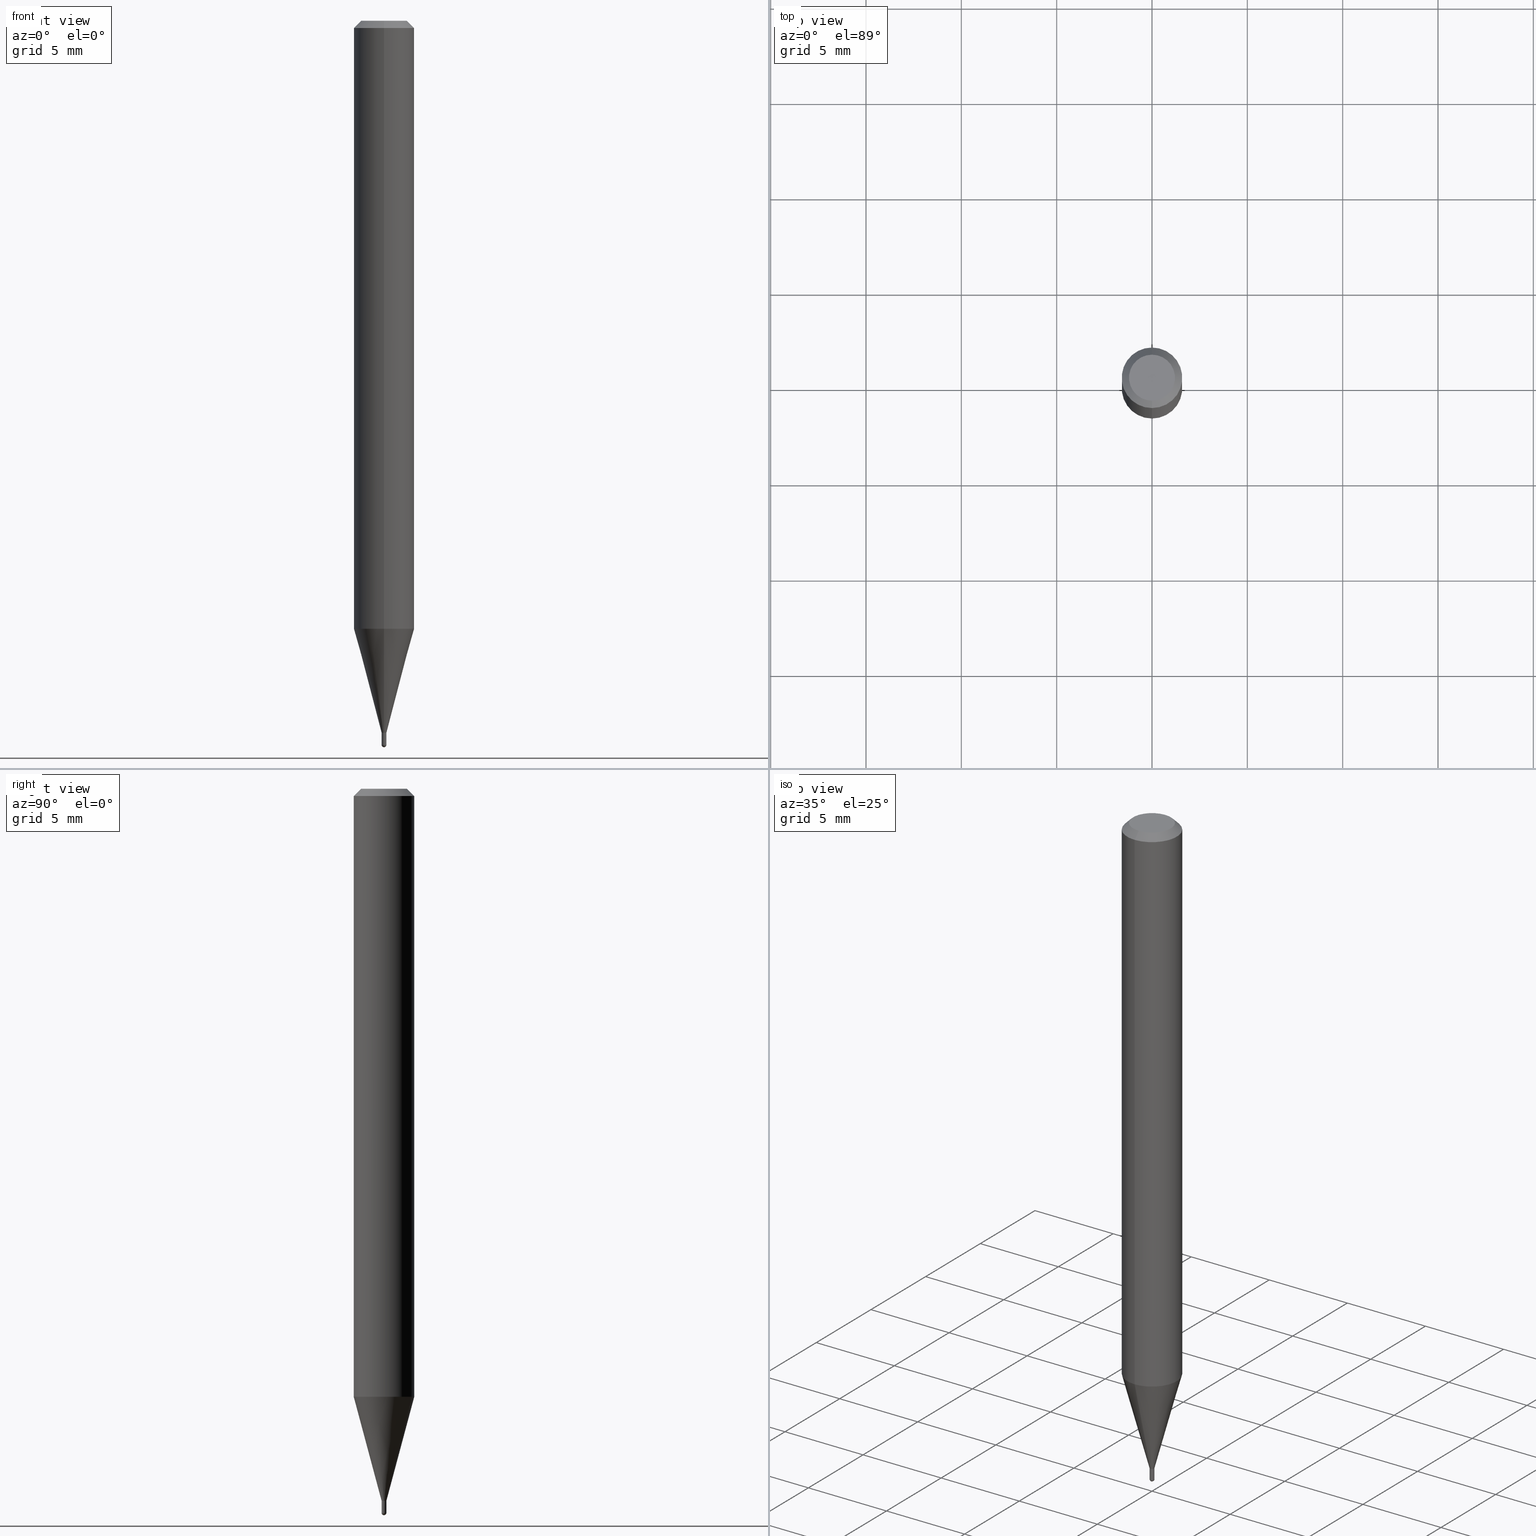
[diagram: canonical four-view strip — front | top / right | iso, engineering-drawing reading convention]
A machine part, canonical four-view strip (front | top / right | iso — engineering-drawing reading convention). The complete STEP part file that produces these views, byte-faithful:
ISO-10303-21;
HEADER;
FILE_DESCRIPTION (( 'STEP AP203' ),
    '1' );
FILE_NAME ('01433.STEP',
    '2024-03-07T20:48:47',
    ( '' ),
    ( '' ),
    'SwSTEP 2.0',
    'SolidWorks 2023',
    '' );
FILE_SCHEMA (( 'CONFIG_CONTROL_DESIGN' ));
ENDSEC;

DATA;
#1 = DATE_TIME_ROLE ( 'classification_date' ) ;
#2 = DIRECTION ( 'NONE',  ( -2.445144721628923764E-29, 3.491945446373389387E-15, 1.000000000000000000 ) ) ;
#3 = COORDINATED_UNIVERSAL_TIME_OFFSET ( 5, 0, .BEHIND. ) ;
#4 = LINE ( 'NONE', #47, #398 ) ;
#5 = PERSON_AND_ORGANIZATION ( #435, #146 ) ;
#6 = DIRECTION ( 'NONE',  ( -2.445468806185136877E-29, 3.491481338843145188E-15, 1.000000000000000000 ) ) ;
#7 = CONICAL_SURFACE ( 'NONE', #512, 0.06250000000000000000, 0.7853981633974483900 ) ;
#8 = ADVANCED_FACE ( 'NONE', ( #227 ), #428, .F. ) ;
#9 = DATE_TIME_ROLE ( 'creation_date' ) ;
#10 = DIRECTION ( 'NONE',  ( -6.982962677686266711E-15, -1.000000000000000000, 3.491945446373389782E-15 ) ) ;
#11 = PRODUCT_RELATED_PRODUCT_CATEGORY ( 'detail', '', ( #134 ) ) ;
#12 = CARTESIAN_POINT ( 'NONE',  ( 3.594362740794518312E-29, -5.133159806168883610E-15, -1.470000000000000195 ) ) ;
#13 = PLANE ( 'NONE',  #330 ) ;
#14 = ORIENTED_EDGE ( 'NONE', *, *, #216, .T. ) ;
#15 = ADVANCED_FACE ( 'NONE', ( #467 ), #278, .F. ) ;
#16 = AXIS2_PLACEMENT_3D ( 'NONE', #165, #288, #315 ) ;
#17 = FACE_OUTER_BOUND ( 'NONE', #96, .T. ) ;
#18 = UNCERTAINTY_MEASURE_WITH_UNIT (LENGTH_MEASURE( 1.000000000000000082E-05 ), #228, 'distance_accuracy_value', 'NONE');
#19 = ORIENTED_EDGE ( 'NONE', *, *, #279, .T. ) ;
#20 = CARTESIAN_POINT ( 'NONE',  ( 3.655548282102189148E-29, -5.220376924970077322E-15, -1.495000000000000107 ) ) ;
#21 = VERTEX_POINT ( 'NONE', #191 ) ;
#22 = DIRECTION ( 'NONE',  ( 1.000000000000000000, -6.982962677686336130E-15, 0.000000000000000000 ) ) ;
#23 = ORIENTED_EDGE ( 'NONE', *, *, #237, .F. ) ;
#24 = EDGE_CURVE ( 'NONE', #380, #374, #200, .T. ) ;
#25 = AXIS2_PLACEMENT_3D ( 'NONE', #508, #393, #77 ) ;
#26 = LINE ( 'NONE', #429, #147 ) ;
#27 = AXIS2_PLACEMENT_3D ( 'NONE', #246, #284, #160 ) ;
#28 = ORIENTED_EDGE ( 'NONE', *, *, #490, .T. ) ;
#29 = DIRECTION ( 'NONE',  ( -2.445144721628923764E-29, 3.491945446373389387E-15, 1.000000000000000000 ) ) ;
#30 = CC_DESIGN_DATE_AND_TIME_ASSIGNMENT ( #238, #1, ( #405 ) ) ;
#31 = ORIENTED_EDGE ( 'NONE', *, *, #511, .T. ) ;
#32 = CARTESIAN_POINT ( 'NONE',  ( 0.000000000000000000, 0.000000000000000000, 0.000000000000000000 ) ) ;
#33 = VERTEX_POINT ( 'NONE', #504 ) ;
#34 = DIRECTION ( 'NONE',  ( 1.000000000000000000, 0.000000000000000000, 0.000000000000000000 ) ) ;
#35 = AXIS2_PLACEMENT_3D ( 'NONE', #70, #302, #34 ) ;
#36 = AXIS2_PLACEMENT_3D ( 'NONE', #49, #125, #90 ) ;
#37 = ORIENTED_EDGE ( 'NONE', *, *, #185, .F. ) ;
#38 = AXIS2_PLACEMENT_3D ( 'NONE', #410, #53, #93 ) ;
#39 = DIMENSIONAL_EXPONENTS ( 1.000000000000000000, 0.000000000000000000, 0.000000000000000000, 0.000000000000000000, 0.000000000000000000, 0.000000000000000000, 0.000000000000000000 ) ;
#40 = EDGE_CURVE ( 'NONE', #374, #471, #82, .T. ) ;
#41 = VERTEX_POINT ( 'NONE', #231 ) ;
#42 = PERSON_AND_ORGANIZATION ( #435, #146 ) ;
#43 = CARTESIAN_POINT ( 'NONE',  ( 3.594839145092150820E-29, -5.132477568099424807E-15, -1.470000000000000195 ) ) ;
#44 = COORDINATED_UNIVERSAL_TIME_OFFSET ( 5, 0, .BEHIND. ) ;
#45 = DIRECTION ( 'NONE',  ( -2.445144721628923764E-29, 3.491945446373389387E-15, 1.000000000000000000 ) ) ;
#46 = APPROVAL_STATUS ( 'not_yet_approved' ) ;
#47 = CARTESIAN_POINT ( 'NONE',  ( -0.004999999999999997502, 3.552713678800499154E-17, -2.459467545127451822E-31 ) ) ;
#48 = FACE_OUTER_BOUND ( 'NONE', #92, .T. ) ;
#49 = CARTESIAN_POINT ( 'NONE',  ( 3.594362740794518312E-29, -5.133159806168883610E-15, -1.470000000000000195 ) ) ;
#50 = VECTOR ( 'NONE', #491, 39.37007874015748143 ) ;
#51 = CARTESIAN_POINT ( 'NONE',  ( 3.491481338846726493E-17, 0.004999999999994865323, -1.470000000000000195 ) ) ;
#52 = EDGE_CURVE ( 'NONE', #294, #69, #202, .T. ) ;
#53 = DIRECTION ( 'NONE',  ( 1.000000000000000000, -6.982962677686265922E-15, 4.883557194083113462E-29 ) ) ;
#54 = VERTEX_POINT ( 'NONE', #234 ) ;
#55 = FACE_OUTER_BOUND ( 'NONE', #296, .T. ) ;
#56 = ORIENTED_EDGE ( 'NONE', *, *, #447, .T. ) ;
#57 = CIRCLE ( 'NONE', #381, 0.06250000000000000000 ) ;
#58 = DIRECTION ( 'NONE',  ( -2.445468806185136597E-29, 3.491481338843145583E-15, 1.000000000000000000 ) ) ;
#59 = ORIENTED_EDGE ( 'NONE', *, *, #178, .T. ) ;
#60 = DIRECTION ( 'NONE',  ( -2.445144721628923764E-29, 3.491945446373389387E-15, 1.000000000000000000 ) ) ;
#61 = ORIENTED_EDGE ( 'NONE', *, *, #141, .F. ) ;
#62 = EDGE_CURVE ( 'NONE', #305, #470, #406, .T. ) ;
#63 = CARTESIAN_POINT ( 'NONE',  ( -4.364351673553912750E-16, -0.06250000000000005551, -0.01499999999999979128 ) ) ;
#64 = ORIENTED_EDGE ( 'NONE', *, *, #506, .T. ) ;
#65 = ADVANCED_FACE ( 'NONE', ( #195 ), #182, .T. ) ;
#66 = AXIS2_PLACEMENT_3D ( 'NONE', #264, #329, #452 ) ;
#67 = ORIENTED_EDGE ( 'NONE', *, *, #62, .T. ) ;
#68 = ADVANCED_FACE ( 'NONE', ( #353 ), #143, .F. ) ;
#69 = VERTEX_POINT ( 'NONE', #360 ) ;
#70 = CARTESIAN_POINT ( 'NONE',  ( 0.000000000000000000, 0.000000000000000000, 0.000000000000000000 ) ) ;
#71 = DIRECTION ( 'NONE',  ( -6.982962677686265922E-15, -1.000000000000000000, 3.483106191921935554E-15 ) ) ;
#72 = CARTESIAN_POINT ( 'NONE',  ( 3.594362740794518312E-29, -5.133159806168883610E-15, -1.470000000000000195 ) ) ;
#73 = PRODUCT_DEFINITION_FORMATION_WITH_SPECIFIED_SOURCE ( 'ANY', '', #134, .NOT_KNOWN. ) ;
#74 = DIRECTION ( 'NONE',  ( -6.982962677686265922E-15, -1.000000000000000000, 0.000000000000000000 ) ) ;
#75 = CIRCLE ( 'NONE', #217, 0.04749999999999999362 ) ;
#76 = DATE_AND_TIME ( #167, #389 ) ;
#77 = DIRECTION ( 'NONE',  ( -6.982962677686265922E-15, -1.000000000000000000, 0.000000000000000000 ) ) ;
#78 = ADVANCED_FACE ( 'NONE', ( #323 ), #404, .T. ) ;
#79 = CALENDAR_DATE ( 2024, 7, 3 ) ;
#80 = DIRECTION ( 'NONE',  ( -2.445144721628923764E-29, 3.491945446373389387E-15, 1.000000000000000000 ) ) ;
#81 = PERSON_AND_ORGANIZATION_ROLE ( 'classification_officer' ) ;
#82 = CIRCLE ( 'NONE', #224, 0.06250000000000000000 ) ;
#83 = VECTOR ( 'NONE', #209, 39.37007874015748143 ) ;
#84 = PERSON_AND_ORGANIZATION_ROLE ( 'creator' ) ;
#85 = DIRECTION ( 'NONE',  ( -6.982962677686265922E-15, -1.000000000000000000, 3.491945446373389387E-15 ) ) ;
#86 = EDGE_CURVE ( 'NONE', #215, #69, #239, .T. ) ;
#87 = DATE_AND_TIME ( #356, #290 ) ;
#88 = CARTESIAN_POINT ( 'NONE',  ( 2.161086020321355253E-46, -3.086277233870654267E-32, -8.838274484144511642E-18 ) ) ;
#89 = MANIFOLD_SOLID_BREP ( 'Body-Move/Copy2[1]', #192 ) ;
#90 = DIRECTION ( 'NONE',  ( -6.982962677686265133E-15, -1.000000000000000000, 0.000000000000000000 ) ) ;
#91 = CARTESIAN_POINT ( 'NONE',  ( 3.552713678804027458E-17, 0.004999999999994774250, -1.469500000000000250 ) ) ;
#92 = EDGE_LOOP ( 'NONE', ( #133, #19, #419, #498 ) ) ;
#93 = DIRECTION ( 'NONE',  ( -6.982962677686265922E-15, -1.000000000000000000, 0.000000000000000000 ) ) ;
#94 = ORIENTED_EDGE ( 'NONE', *, *, #158, .F. ) ;
#95 = DIRECTION ( 'NONE',  ( -2.445468806185136597E-29, 3.491481338843145583E-15, 1.000000000000000000 ) ) ;
#96 = EDGE_LOOP ( 'NONE', ( #161, #64, #102, #255 ) ) ;
#97 = AXIS2_PLACEMENT_3D ( 'NONE', #412, #372, #496 ) ;
#98 = DIRECTION ( 'NONE',  ( -2.445144721628923764E-29, 3.491945446373389387E-15, 1.000000000000000000 ) ) ;
#99 = EDGE_LOOP ( 'NONE', ( #59, #384, #309, #213, #268 ) ) ;
#100 = ADVANCED_FACE ( 'NONE', ( #445 ), #172, .T. ) ;
#101 = CARTESIAN_POINT ( 'NONE',  ( 0.004999999999999997502, -5.211035898223395623E-15, -1.495000000000000107 ) ) ;
#102 = ORIENTED_EDGE ( 'NONE', *, *, #198, .T. ) ;
#103 = CC_DESIGN_PERSON_AND_ORGANIZATION_ASSIGNMENT ( #444, #81, ( #405 ) ) ;
#104 = CARTESIAN_POINT ( 'NONE',  ( 0.000000000000000000, 0.000000000000000000, 0.000000000000000000 ) ) ;
#105 = ORIENTED_EDGE ( 'NONE', *, *, #62, .F. ) ;
#106 = CIRCLE ( 'NONE', #322, 0.004999999999999997502 ) ;
#107 = DIRECTION ( 'NONE',  ( 2.445144721628923764E-29, -3.491945446373389387E-15, -1.000000000000000000 ) ) ;
#108 = ORIENTED_EDGE ( 'NONE', *, *, #118, .F. ) ;
#109 = ORIENTED_EDGE ( 'NONE', *, *, #394, .T. ) ;
#110 = CARTESIAN_POINT ( 'NONE',  ( 3.594362740794518312E-29, -5.133159806168883610E-15, -1.470000000000000195 ) ) ;
#111 = EDGE_LOOP ( 'NONE', ( #439, #56, #223, #434 ) ) ;
#112 = VECTOR ( 'NONE', #311, 39.37007874015748143 ) ;
#113 = DIRECTION ( 'NONE',  ( 1.000000000000000000, -6.982962677686336130E-15, 0.000000000000000000 ) ) ;
#114 = AXIS2_PLACEMENT_3D ( 'NONE', #456, #60, #218 ) ;
#115 = LINE ( 'NONE', #436, #283 ) ;
#116 = APPROVAL ( #240, 'UNSPECIFIED' ) ;
#117 = DIRECTION ( 'NONE',  ( -6.982962677686265922E-15, -1.000000000000000000, 0.000000000000000000 ) ) ;
#118 = EDGE_CURVE ( 'NONE', #455, #305, #4, .T. ) ;
#119 = PERSON_AND_ORGANIZATION ( #435, #146 ) ;
#120 = LINE ( 'NONE', #245, #347 ) ;
#121 = AXIS2_PLACEMENT_3D ( 'NONE', #151, #313, #74 ) ;
#122 = AXIS2_PLACEMENT_3D ( 'NONE', #297, #170, #337 ) ;
#123 = COORDINATED_UNIVERSAL_TIME_OFFSET ( 5, 0, .BEHIND. ) ;
#124 = CC_DESIGN_PERSON_AND_ORGANIZATION_ASSIGNMENT ( #462, #482, ( #134 ) ) ;
#125 = DIRECTION ( 'NONE',  ( -2.445144721628923764E-29, 3.491945446373389387E-15, 1.000000000000000000 ) ) ;
#126 = COORDINATED_UNIVERSAL_TIME_OFFSET ( 5, 0, .BEHIND. ) ;
#127 = DIRECTION ( 'NONE',  ( -6.982962677686265133E-15, -1.000000000000000000, 0.000000000000000000 ) ) ;
#128 = CARTESIAN_POINT ( 'NONE',  ( 4.440892098500625669E-16, 0.06250000000000000000, -2.182465903983368367E-16 ) ) ;
#129 = CC_DESIGN_APPROVAL ( #257, ( #73 ) ) ;
#130 = CC_DESIGN_PERSON_AND_ORGANIZATION_ASSIGNMENT ( #285, #163, ( #73 ) ) ;
#131 = VECTOR ( 'NONE', #507, 39.37007874015748143 ) ;
#132 = LINE ( 'NONE', #128, #50 ) ;
#133 = ORIENTED_EDGE ( 'NONE', *, *, #237, .T. ) ;
#134 = PRODUCT ( '01433', '01433', '', ( #350 ) ) ;
#135 = CARTESIAN_POINT ( 'NONE',  ( -4.364351673553916201E-16, -0.06250000000000000000, 2.182465903983368367E-16 ) ) ;
#136 = EDGE_LOOP ( 'NONE', ( #108, #188, #219, #509, #105 ) ) ;
#137 = CARTESIAN_POINT ( 'NONE',  ( 3.840629472727447874E-16, 0.04749999999999999362, -1.747056831868805136E-16 ) ) ;
#138 = ORIENTED_EDGE ( 'NONE', *, *, #266, .F. ) ;
#139 = CIRCLE ( 'NONE', #306, 0.005000000000000177046 ) ;
#140 = DIRECTION ( 'NONE',  ( -1.000000000000000000, 6.982962677686265922E-15, -4.883557194083112340E-29 ) ) ;
#141 = EDGE_CURVE ( 'NONE', #455, #282, #241, .T. ) ;
#142 = ORIENTED_EDGE ( 'NONE', *, *, #198, .F. ) ;
#143 = PLANE ( 'NONE',  #424 ) ;
#144 = CARTESIAN_POINT ( 'NONE',  ( 3.667717082443388186E-31, -5.237918169560087014E-17, -0.01500000000000000812 ) ) ;
#145 = ORIENTED_EDGE ( 'NONE', *, *, #432, .T. ) ;
#146 = ORGANIZATION ( 'UNSPECIFIED', 'UNSPECIFIED', '' ) ;
#147 = VECTOR ( 'NONE', #226, 39.37007874015748143 ) ;
#148 = FACE_OUTER_BOUND ( 'NONE', #425, .T. ) ;
#149 = EDGE_LOOP ( 'NONE', ( #31, #67 ) ) ;
#150 =( LENGTH_UNIT ( ) NAMED_UNIT ( * ) SI_UNIT ( $, .METRE. ) );
#151 = CARTESIAN_POINT ( 'NONE',  ( 3.593140168433704494E-29, -5.131413833445697491E-15, -1.469500000000000250 ) ) ;
#152 = DIRECTION ( 'NONE',  ( -2.445144721628923764E-29, 3.491945446373389387E-15, 1.000000000000000000 ) ) ;
#153 = ADVANCED_FACE ( 'NONE', ( #48 ), #260, .T. ) ;
#154 = CARTESIAN_POINT ( 'NONE',  ( 0.000000000000000000, 0.000000000000000000, 0.000000000000000000 ) ) ;
#155 = CARTESIAN_POINT ( 'NONE',  ( 3.594362740794518312E-29, -5.133159806168883610E-15, -1.470000000000000195 ) ) ;
#156 = CIRCLE ( 'NONE', #373, 0.004999999999999997502 ) ;
#157 = LINE ( 'NONE', #474, #83 ) ;
#158 = EDGE_CURVE ( 'NONE', #339, #380, #371, .T. ) ;
#159 = PERSON_AND_ORGANIZATION ( #435, #146 ) ;
#160 = DIRECTION ( 'NONE',  ( 7.105427357601000281E-15, 1.000000000000000000, 0.000000000000000000 ) ) ;
#161 = ORIENTED_EDGE ( 'NONE', *, *, #437, .F. ) ;
#162 = CC_DESIGN_PERSON_AND_ORGANIZATION_ASSIGNMENT ( #159, #208, ( #73 ) ) ;
#163 = PERSON_AND_ORGANIZATION_ROLE ( 'creator' ) ;
#164 = CC_DESIGN_APPROVAL ( #358, ( #405 ) ) ;
#165 = CARTESIAN_POINT ( 'NONE',  ( 3.655975865246779122E-29, -5.219764601570503141E-15, -1.495000000000000107 ) ) ;
#166 = CIRCLE ( 'NONE', #458, 0.004999999999999997502 ) ;
#167 = CALENDAR_DATE ( 2024, 7, 3 ) ;
#168 = DIRECTION ( 'NONE',  ( -6.982962677686265133E-15, -1.000000000000000000, 0.000000000000000000 ) ) ;
#169 = CARTESIAN_POINT ( 'NONE',  ( 3.594362740794518312E-29, -5.133159806168883610E-15, -1.470000000000000195 ) ) ;
#170 = DIRECTION ( 'NONE',  ( -2.445468806185136597E-29, 3.491481338843145583E-15, 1.000000000000000000 ) ) ;
#171 = ORIENTED_EDGE ( 'NONE', *, *, #506, .F. ) ;
#172 = CONICAL_SURFACE ( 'NONE', #466, 0.004499999999999997058, 0.7853981633974744803 ) ;
#173 = FACE_OUTER_BOUND ( 'NONE', #136, .T. ) ;
#174 = EDGE_LOOP ( 'NONE', ( #186, #331, #453, #499 ) ) ;
#175 = ADVANCED_FACE ( 'NONE', ( #438 ), #204, .T. ) ;
#176 = CARTESIAN_POINT ( 'NONE',  ( 3.655975865246779122E-29, -5.219764601570503141E-15, -1.495000000000000107 ) ) ;
#177 = ORIENTED_EDGE ( 'NONE', *, *, #40, .F. ) ;
#178 = EDGE_CURVE ( 'NONE', #333, #455, #156, .T. ) ;
#179 = CARTESIAN_POINT ( 'NONE',  ( 3.552713678804217894E-17, 0.004999999999994867057, -1.495000000000000107 ) ) ;
#180 = ORIENTED_EDGE ( 'NONE', *, *, #247, .F. ) ;
#181 = ADVANCED_BREP_SHAPE_REPRESENTATION ( '01433', ( #89, #430, #35 ), #364 ) ;
#182 = CONICAL_SURFACE ( 'NONE', #25, 0.004999999999999922042, 0.2617993877991574014 ) ;
#183 = CONICAL_SURFACE ( 'NONE', #497, 0.004999999999999922042, 0.2617993877991574014 ) ;
#184 = DIRECTION ( 'NONE',  ( -2.445144721628923764E-29, 3.491945446373389387E-15, 1.000000000000000000 ) ) ;
#185 = EDGE_CURVE ( 'NONE', #380, #339, #75, .T. ) ;
#186 = ORIENTED_EDGE ( 'NONE', *, *, #394, .F. ) ;
#187 = CARTESIAN_POINT ( 'NONE',  ( 3.593140168433704494E-29, -5.131413833445697491E-15, -1.469500000000000250 ) ) ;
#188 = ORIENTED_EDGE ( 'NONE', *, *, #141, .T. ) ;
#189 = DIRECTION ( 'NONE',  ( -6.982962677686265922E-15, -1.000000000000000000, 0.000000000000000000 ) ) ;
#190 = DESIGN_CONTEXT ( 'detailed design', #259, 'design' ) ;
#191 = CARTESIAN_POINT ( 'NONE',  ( 3.667561834560820214E-29, -5.238140493364080236E-15, -1.500000000000000222 ) ) ;
#192 = CLOSED_SHELL ( 'NONE', ( #476, #402, #68, #78, #327 ) ) ;
#193 = AXIS2_PLACEMENT_3D ( 'NONE', #418, #368, #488 ) ;
#194 = DIRECTION ( 'NONE',  ( 6.982962677686265922E-15, 1.000000000000000000, -3.483106191921935554E-15 ) ) ;
#195 = FACE_OUTER_BOUND ( 'NONE', #459, .T. ) ;
#196 =( NAMED_UNIT ( * ) PLANE_ANGLE_UNIT ( ) SI_UNIT ( $, .RADIAN. ) );
#197 = EDGE_LOOP ( 'NONE', ( #180, #463, #396, #145 ) ) ;
#198 = EDGE_CURVE ( 'NONE', #215, #54, #357, .T. ) ;
#199 = SHAPE_DEFINITION_REPRESENTATION ( #486, #181 ) ;
#200 = LINE ( 'NONE', #276, #112 ) ;
#201 = APPROVAL_DATE_TIME ( #76, #257 ) ;
#202 = CIRCLE ( 'NONE', #121, 0.004999999999999922042 ) ;
#203 = CIRCLE ( 'NONE', #291, 0.004499999999999997058 ) ;
#204 = CYLINDRICAL_SURFACE ( 'NONE', #355, 0.06250000000000000000 ) ;
#205 = SECURITY_CLASSIFICATION_LEVEL ( 'unclassified' ) ;
#206 = DIRECTION ( 'NONE',  ( 2.438088387897960049E-29, -3.491481338843145188E-15, -1.000000000000000000 ) ) ;
#207 = CARTESIAN_POINT ( 'NONE',  ( 3.655975865246779122E-29, -5.219764601570503141E-15, -1.495000000000000107 ) ) ;
#208 = PERSON_AND_ORGANIZATION_ROLE ( 'design_supplier' ) ;
#209 = DIRECTION ( 'NONE',  ( -4.937700262164676627E-15, -0.7071067811865635599, 0.7071067811865314745 ) ) ;
#210 = VECTOR ( 'NONE', #280, 39.37007874015748854 ) ;
#211 = DIRECTION ( 'NONE',  ( 1.000000000000000000, -6.982962677686336130E-15, 0.000000000000000000 ) ) ;
#212 = LINE ( 'NONE', #135, #225 ) ;
#213 = ORIENTED_EDGE ( 'NONE', *, *, #336, .F. ) ;
#214 = LINE ( 'NONE', #375, #472 ) ;
#215 = VERTEX_POINT ( 'NONE', #286 ) ;
#216 = EDGE_CURVE ( 'NONE', #21, #333, #250, .T. ) ;
#217 = AXIS2_PLACEMENT_3D ( 'NONE', #88, #510, #10 ) ;
#218 = DIRECTION ( 'NONE',  ( -6.982962677686265922E-15, -1.000000000000000000, 3.491945446373389387E-15 ) ) ;
#219 = ORIENTED_EDGE ( 'NONE', *, *, #417, .T. ) ;
#220 = EDGE_CURVE ( 'NONE', #41, #69, #157, .T. ) ;
#221 = CYLINDRICAL_SURFACE ( 'NONE', #114, 0.06250000000000000000 ) ;
#222 = ORIENTED_EDGE ( 'NONE', *, *, #52, .T. ) ;
#223 = ORIENTED_EDGE ( 'NONE', *, *, #220, .T. ) ;
#224 = AXIS2_PLACEMENT_3D ( 'NONE', #468, #431, #71 ) ;
#225 = VECTOR ( 'NONE', #295, 39.37007874015748143 ) ;
#226 = DIRECTION ( 'NONE',  ( 1.839019923739649225E-15, 0.2588190451025318417, 0.9659258262890653146 ) ) ;
#227 = FACE_OUTER_BOUND ( 'NONE', #376, .T. ) ;
#228 =( CONVERSION_BASED_UNIT ( 'INCH', #308 ) LENGTH_UNIT ( ) NAMED_UNIT ( #39 ) );
#229 = DIRECTION ( 'NONE',  ( -2.445144721628923764E-29, 3.491945446373389387E-15, 1.000000000000000000 ) ) ;
#230 = DIRECTION ( 'NONE',  ( -6.982962677686265922E-15, -1.000000000000000000, 3.491945446373389387E-15 ) ) ;
#231 = CARTESIAN_POINT ( 'NONE',  ( -3.142333204955223110E-17, -0.004500000000005130105, -1.470000000000000195 ) ) ;
#232 = AXIS2_PLACEMENT_3D ( 'NONE', #493, #262, #194 ) ;
#233 = CARTESIAN_POINT ( 'NONE',  ( 4.440892098500934804E-16, 0.06249999999999995143, -0.01500000000000022669 ) ) ;
#234 = CARTESIAN_POINT ( 'NONE',  ( -4.364351673553610024E-16, -0.06250000000000439926, -1.255407078564795942 ) ) ;
#235 = CALENDAR_DATE ( 2024, 7, 3 ) ;
#236 = ORIENTED_EDGE ( 'NONE', *, *, #158, .T. ) ;
#237 = EDGE_CURVE ( 'NONE', #41, #421, #365, .T. ) ;
#238 = DATE_AND_TIME ( #79, #440 ) ;
#239 = LINE ( 'NONE', #443, #328 ) ;
#240 = APPROVAL_STATUS ( 'not_yet_approved' ) ;
#241 = CIRCLE ( 'NONE', #16, 0.004999999999999997502 ) ;
#242 = CIRCLE ( 'NONE', #442, 0.004999999999999922042 ) ;
#243 = DIRECTION ( 'NONE',  ( -6.982962677686265922E-15, -1.000000000000000000, 4.370956789862821150E-15 ) ) ;
#244 = APPLICATION_PROTOCOL_DEFINITION ( 'international standard', 'config_control_design', 1994, #259 ) ;
#245 = CARTESIAN_POINT ( 'NONE',  ( 3.197442310924042993E-17, 0.004499999999994863144, -1.470000000000000195 ) ) ;
#246 = CARTESIAN_POINT ( 'NONE',  ( 3.655548282102189148E-29, -5.220376924970077322E-15, -1.495000000000000107 ) ) ;
#247 = EDGE_CURVE ( 'NONE', #33, #294, #115, .T. ) ;
#248 = CARTESIAN_POINT ( 'NONE',  ( 2.161086020321355253E-46, -3.086277233870654267E-32, -8.838274484144511642E-18 ) ) ;
#249 = CLOSED_SHELL ( 'NONE', ( #8, #153, #422, #289, #65, #352, #175, #484, #15, #377, #100, #500 ) ) ;
#250 = CIRCLE ( 'NONE', #27, 0.005000000000000177046 ) ;
#251 = CC_DESIGN_PERSON_AND_ORGANIZATION_ASSIGNMENT ( #5, #84, ( #457 ) ) ;
#252 = DIRECTION ( 'NONE',  ( -2.445144721628923764E-29, 3.491945446373389387E-15, 1.000000000000000000 ) ) ;
#253 = ORIENTED_EDGE ( 'NONE', *, *, #345, .F. ) ;
#254 = CARTESIAN_POINT ( 'NONE',  ( -0.004999999999999997502, -5.140593948046958933E-15, -1.470000000000000195 ) ) ;
#255 = ORIENTED_EDGE ( 'NONE', *, *, #361, .F. ) ;
#256 = DIRECTION ( 'NONE',  ( 1.000000000000000000, -6.982962677686336130E-15, 0.000000000000000000 ) ) ;
#257 = APPROVAL ( #319, 'UNSPECIFIED' ) ;
#258 = ORIENTED_EDGE ( 'NONE', *, *, #383, .T. ) ;
#259 = APPLICATION_CONTEXT ( 'configuration controlled 3d designs of mechanical parts and assemblies' ) ;
#260 = CONICAL_SURFACE ( 'NONE', #36, 0.004499999999999997058, 0.7853981633974744803 ) ;
#261 = AXIS2_PLACEMENT_3D ( 'NONE', #460, #58, #22 ) ;
#262 = DIRECTION ( 'NONE',  ( 2.445144721628923764E-29, -3.491945446373389387E-15, -1.000000000000000000 ) ) ;
#263 = EDGE_LOOP ( 'NONE', ( #413, #351, #61, #451 ) ) ;
#264 = CARTESIAN_POINT ( 'NONE',  ( 3.069651991648299295E-29, -4.383813031339259395E-15, -1.255407078564796164 ) ) ;
#265 = ORIENTED_EDGE ( 'NONE', *, *, #417, .F. ) ;
#266 = EDGE_CURVE ( 'NONE', #54, #292, #57, .T. ) ;
#267 = CARTESIAN_POINT ( 'NONE',  ( 4.364351673553919652E-16, 0.06249999999999995143, -0.01500000000000022669 ) ) ;
#268 = ORIENTED_EDGE ( 'NONE', *, *, #307, .T. ) ;
#269 = CC_DESIGN_APPROVAL ( #116, ( #457 ) ) ;
#270 = CIRCLE ( 'NONE', #97, 0.004999999999999922042 ) ;
#271 = FACE_OUTER_BOUND ( 'NONE', #99, .T. ) ;
#272 = CARTESIAN_POINT ( 'NONE',  ( 3.316907271900976096E-16, 0.04749999999999999362, -1.702865459448082617E-16 ) ) ;
#273 =( NAMED_UNIT ( * ) SI_UNIT ( $, .STERADIAN. ) SOLID_ANGLE_UNIT ( ) );
#274 = EDGE_LOOP ( 'NONE', ( #37, #411, #379, #386 ) ) ;
#275 = CARTESIAN_POINT ( 'NONE',  ( 3.594839145092150820E-29, -5.132477568099424807E-15, -1.470000000000000195 ) ) ;
#276 = CARTESIAN_POINT ( 'NONE',  ( -4.287811248607203282E-16, -0.06250000000000005551, -0.01499999999999979128 ) ) ;
#277 = CIRCLE ( 'NONE', #193, 0.06250000000000000000 ) ;
#278 = PLANE ( 'NONE',  #441 ) ;
#279 = EDGE_CURVE ( 'NONE', #421, #294, #120, .T. ) ;
#280 = DIRECTION ( 'NONE',  ( -1.807323732225378260E-15, -0.2588190451025250693, 0.9659258262890670910 ) ) ;
#281 = DIRECTION ( 'NONE',  ( -2.445144721628923764E-29, 3.491945446373389387E-15, 1.000000000000000000 ) ) ;
#282 = VERTEX_POINT ( 'NONE', #363 ) ;
#283 = VECTOR ( 'NONE', #80, 39.37007874015748143 ) ;
#284 = DIRECTION ( 'NONE',  ( 1.000000000000000000, -7.105427357601001070E-15, 4.926315508542082329E-29 ) ) ;
#285 = PERSON_AND_ORGANIZATION ( #435, #146 ) ;
#286 = CARTESIAN_POINT ( 'NONE',  ( -3.491481338839484381E-17, -0.005000000000005055088, -1.470000000000000195 ) ) ;
#287 = COORDINATED_UNIVERSAL_TIME_OFFSET ( 5, 0, .BEHIND. ) ;
#288 = DIRECTION ( 'NONE',  ( -2.445468806185136597E-29, 3.491481338843145583E-15, 1.000000000000000000 ) ) ;
#289 = ADVANCED_FACE ( 'NONE', ( #55 ), #221, .T. ) ;
#290 = LOCAL_TIME ( 15, 48, 47.00000000000000000, #287 ) ;
#291 = AXIS2_PLACEMENT_3D ( 'NONE', #72, #184, #469 ) ;
#292 = VERTEX_POINT ( 'NONE', #378 ) ;
#293 = DIRECTION ( 'NONE',  ( -2.445468806185136877E-29, 3.491481338843145188E-15, 1.000000000000000000 ) ) ;
#294 = VERTEX_POINT ( 'NONE', #91 ) ;
#295 = DIRECTION ( 'NONE',  ( -2.445144721628923764E-29, 3.491945446373389387E-15, 1.000000000000000000 ) ) ;
#296 = EDGE_LOOP ( 'NONE', ( #494, #109, #177, #344 ) ) ;
#297 = CARTESIAN_POINT ( 'NONE',  ( 0.000000000000000000, 0.000000000000000000, 0.000000000000000000 ) ) ;
#298 = AXIS2_PLACEMENT_3D ( 'NONE', #104, #348, #503 ) ;
#299 = ORIENTED_EDGE ( 'NONE', *, *, #185, .T. ) ;
#300 = CYLINDRICAL_SURFACE ( 'NONE', #122, 0.004999999999999997502 ) ;
#301 = EDGE_LOOP ( 'NONE', ( #253, #14, #461, #265 ) ) ;
#302 = DIRECTION ( 'NONE',  ( 0.000000000000000000, 0.000000000000000000, 1.000000000000000000 ) ) ;
#303 = ORIENTED_EDGE ( 'NONE', *, *, #24, .F. ) ;
#304 = CYLINDRICAL_SURFACE ( 'NONE', #298, 0.004999999999999997502 ) ;
#305 = VERTEX_POINT ( 'NONE', #254 ) ;
#306 = AXIS2_PLACEMENT_3D ( 'NONE', #20, #140, #420 ) ;
#307 = EDGE_CURVE ( 'NONE', #342, #333, #487, .T. ) ;
#308 = LENGTH_MEASURE_WITH_UNIT ( LENGTH_MEASURE( 0.02539999999999999897 ), #150 );
#309 = ORIENTED_EDGE ( 'NONE', *, *, #511, .F. ) ;
#310 = APPLICATION_PROTOCOL_DEFINITION ( 'international standard', 'config_control_design', 1994, #390 ) ;
#311 = DIRECTION ( 'NONE',  ( -4.851104656540964275E-15, -0.7071067811865500152, -0.7071067811865450192 ) ) ;
#312 = DIRECTION ( 'NONE',  ( 1.000000000000000000, -6.982962677686336130E-15, 0.000000000000000000 ) ) ;
#313 = DIRECTION ( 'NONE',  ( -2.445144721628923764E-29, 3.491945446373389387E-15, 1.000000000000000000 ) ) ;
#314 = PERSON_AND_ORGANIZATION ( #435, #146 ) ;
#315 = DIRECTION ( 'NONE',  ( 1.000000000000000000, -6.982962677686336130E-15, 0.000000000000000000 ) ) ;
#316 = EDGE_CURVE ( 'NONE', #215, #33, #270, .T. ) ;
#317 = CARTESIAN_POINT ( 'NONE',  ( 3.069651991648299295E-29, -4.383813031339259395E-15, -1.255407078564796164 ) ) ;
#318 = ORIENTED_EDGE ( 'NONE', *, *, #316, .T. ) ;
#319 = APPROVAL_STATUS ( 'not_yet_approved' ) ;
#320 = DIRECTION ( 'NONE',  ( -2.445144721628923764E-29, 3.491945446373389387E-15, 1.000000000000000000 ) ) ;
#321 = APPROVAL_DATE_TIME ( #400, #116 ) ;
#322 = AXIS2_PLACEMENT_3D ( 'NONE', #176, #95, #256 ) ;
#323 = FACE_OUTER_BOUND ( 'NONE', #263, .T. ) ;
#324 = APPROVAL_ROLE ( '' ) ;
#325 = CARTESIAN_POINT ( 'NONE',  ( -3.491481338839484381E-17, -0.005000000000005055088, -1.470000000000000195 ) ) ;
#326 = DIRECTION ( 'NONE',  ( -6.982962677686265922E-15, -1.000000000000000000, 3.491945446373389387E-15 ) ) ;
#327 = ADVANCED_FACE ( 'NONE', ( #173 ), #300, .T. ) ;
#328 = VECTOR ( 'NONE', #320, 39.37007874015748143 ) ;
#329 = DIRECTION ( 'NONE',  ( -2.445144721628923764E-29, 3.491945446373389387E-15, 1.000000000000000000 ) ) ;
#330 = AXIS2_PLACEMENT_3D ( 'NONE', #169, #98, #326 ) ;
#331 = ORIENTED_EDGE ( 'NONE', *, *, #361, .T. ) ;
#332 = FACE_OUTER_BOUND ( 'NONE', #301, .T. ) ;
#333 = VERTEX_POINT ( 'NONE', #179 ) ;
#334 = FACE_OUTER_BOUND ( 'NONE', #274, .T. ) ;
#335 = ORIENTED_EDGE ( 'NONE', *, *, #447, .F. ) ;
#336 = EDGE_CURVE ( 'NONE', #342, #470, #214, .T. ) ;
#337 = DIRECTION ( 'NONE',  ( 1.000000000000000000, -6.982962677686266711E-15, 4.876176775795936914E-29 ) ) ;
#338 = APPROVAL_PERSON_ORGANIZATION ( #42, #358, #324 ) ;
#339 = VERTEX_POINT ( 'NONE', #137 ) ;
#340 = AXIS2_PLACEMENT_3D ( 'NONE', #154, #229, #502 ) ;
#341 = CC_DESIGN_DATE_AND_TIME_ASSIGNMENT ( #87, #9, ( #457 ) ) ;
#342 = VERTEX_POINT ( 'NONE', #101 ) ;
#343 = DIRECTION ( 'NONE',  ( -6.982962677686265922E-15, -1.000000000000000000, 0.000000000000000000 ) ) ;
#344 = ORIENTED_EDGE ( 'NONE', *, *, #409, .F. ) ;
#345 = EDGE_CURVE ( 'NONE', #21, #282, #139, .T. ) ;
#346 = ORIENTED_EDGE ( 'NONE', *, *, #247, .T. ) ;
#347 = VECTOR ( 'NONE', #403, 39.37007874015748143 ) ;
#348 = DIRECTION ( 'NONE',  ( -2.445468806185136597E-29, 3.491481338843145583E-15, 1.000000000000000000 ) ) ;
#349 = DIRECTION ( 'NONE',  ( 2.445144721628923764E-29, -3.491945446373389387E-15, -1.000000000000000000 ) ) ;
#350 = MECHANICAL_CONTEXT ( 'NONE', #390, 'mechanical' ) ;
#351 = ORIENTED_EDGE ( 'NONE', *, *, #345, .T. ) ;
#352 = ADVANCED_FACE ( 'NONE', ( #17 ), #183, .T. ) ;
#353 = FACE_OUTER_BOUND ( 'NONE', #149, .T. ) ;
#354 = APPROVAL_PERSON_ORGANIZATION ( #119, #116, #362 ) ;
#355 = AXIS2_PLACEMENT_3D ( 'NONE', #477, #408, #85 ) ;
#356 = CALENDAR_DATE ( 2024, 7, 3 ) ;
#357 = LINE ( 'NONE', #325, #210 ) ;
#358 = APPROVAL ( #46, 'UNSPECIFIED' ) ;
#359 = DATE_AND_TIME ( #235, #370 ) ;
#360 = CARTESIAN_POINT ( 'NONE',  ( -3.491481338839496707E-17, -0.005000000000005069833, -1.469500000000000250 ) ) ;
#361 = EDGE_CURVE ( 'NONE', #292, #54, #449, .T. ) ;
#362 = APPROVAL_ROLE ( '' ) ;
#363 = CARTESIAN_POINT ( 'NONE',  ( -3.491481338839537998E-17, -0.005000000000005307491, -1.495000000000000107 ) ) ;
#364 =( GEOMETRIC_REPRESENTATION_CONTEXT ( 3 ) GLOBAL_UNCERTAINTY_ASSIGNED_CONTEXT ( ( #18 ) ) GLOBAL_UNIT_ASSIGNED_CONTEXT ( ( #228, #196, #273 ) ) REPRESENTATION_CONTEXT ( 'NONE', 'WORKASPACE' ) );
#365 = CIRCLE ( 'NONE', #505, 0.004499999999999997058 ) ;
#366 = DIRECTION ( 'NONE',  ( -2.445468806185136597E-29, 3.491481338843145583E-15, 1.000000000000000000 ) ) ;
#367 = FACE_OUTER_BOUND ( 'NONE', #369, .T. ) ;
#368 = DIRECTION ( 'NONE',  ( -2.445144721628923764E-29, 3.491945446373389387E-15, 1.000000000000000000 ) ) ;
#369 = EDGE_LOOP ( 'NONE', ( #23, #335 ) ) ;
#370 = LOCAL_TIME ( 15, 48, 47.00000000000000000, #3 ) ;
#371 = CIRCLE ( 'NONE', #415, 0.04749999999999999362 ) ;
#372 = DIRECTION ( 'NONE',  ( -2.445144721628923764E-29, 3.491945446373389387E-15, 1.000000000000000000 ) ) ;
#373 = AXIS2_PLACEMENT_3D ( 'NONE', #207, #366, #211 ) ;
#374 = VERTEX_POINT ( 'NONE', #63 ) ;
#375 = CARTESIAN_POINT ( 'NONE',  ( 0.004999999999999997502, -3.491481338843131630E-17, 2.438088387897967108E-31 ) ) ;
#376 = EDGE_LOOP ( 'NONE', ( #171, #346, #222, #416 ) ) ;
#377 = ADVANCED_FACE ( 'NONE', ( #367 ), #13, .F. ) ;
#378 = CARTESIAN_POINT ( 'NONE',  ( 4.440892098500931845E-16, 0.06249999999999560074, -1.255407078564796608 ) ) ;
#379 = ORIENTED_EDGE ( 'NONE', *, *, #40, .T. ) ;
#380 = VERTEX_POINT ( 'NONE', #485 ) ;
#381 = AXIS2_PLACEMENT_3D ( 'NONE', #317, #281, #243 ) ;
#382 = LINE ( 'NONE', #267, #131 ) ;
#383 = EDGE_CURVE ( 'NONE', #471, #374, #277, .T. ) ;
#384 = ORIENTED_EDGE ( 'NONE', *, *, #118, .T. ) ;
#385 = DIRECTION ( 'NONE',  ( 6.982962677686265922E-15, 1.000000000000000000, -3.483106191921935554E-15 ) ) ;
#386 = ORIENTED_EDGE ( 'NONE', *, *, #490, .F. ) ;
#387 = DIRECTION ( 'NONE',  ( -2.445144721628923764E-29, 3.491945446373389387E-15, 1.000000000000000000 ) ) ;
#388 = DIRECTION ( 'NONE',  ( -2.445468806185136597E-29, 3.491481338843145583E-15, 1.000000000000000000 ) ) ;
#389 = LOCAL_TIME ( 15, 48, 47.00000000000000000, #44 ) ;
#390 = APPLICATION_CONTEXT ( 'configuration controlled 3d designs of mechanical parts and assemblies' ) ;
#391 = CONICAL_SURFACE ( 'NONE', #232, 0.06250000000000000000, 0.7853981633974483900 ) ;
#392 = FACE_OUTER_BOUND ( 'NONE', #197, .T. ) ;
#393 = DIRECTION ( 'NONE',  ( -2.445144721628923764E-29, 3.491945446373389387E-15, 1.000000000000000000 ) ) ;
#394 = EDGE_CURVE ( 'NONE', #292, #471, #132, .T. ) ;
#395 = APPROVAL_DATE_TIME ( #359, #358 ) ;
#396 = ORIENTED_EDGE ( 'NONE', *, *, #86, .T. ) ;
#397 = DIRECTION ( 'NONE',  ( -1.000000000000000000, 6.982962677686265922E-15, -4.876176775795935793E-29 ) ) ;
#398 = VECTOR ( 'NONE', #6, 39.37007874015748143 ) ;
#399 = AXIS2_PLACEMENT_3D ( 'NONE', #32, #29, #230 ) ;
#400 = DATE_AND_TIME ( #473, #495 ) ;
#401 = DIRECTION ( 'NONE',  ( -2.445144721628923764E-29, 3.491945446373389387E-15, 1.000000000000000000 ) ) ;
#402 = ADVANCED_FACE ( 'NONE', ( #332 ), #450, .T. ) ;
#403 = DIRECTION ( 'NONE',  ( 5.024295867788193341E-15, 0.7071067811865684449, 0.7071067811865265895 ) ) ;
#404 = SPHERICAL_SURFACE ( 'NONE', #478, 0.005000000000000177046 ) ;
#405 = SECURITY_CLASSIFICATION ( '', '', #205 ) ;
#406 = CIRCLE ( 'NONE', #448, 0.004999999999999997502 ) ;
#407 = CIRCLE ( 'NONE', #479, 0.004999999999999922042 ) ;
#408 = DIRECTION ( 'NONE',  ( -2.445144721628923764E-29, 3.491945446373389387E-15, 1.000000000000000000 ) ) ;
#409 = EDGE_CURVE ( 'NONE', #54, #374, #212, .T. ) ;
#410 = CARTESIAN_POINT ( 'NONE',  ( 3.655548282102189148E-29, -5.220376924970077322E-15, -1.495000000000000107 ) ) ;
#411 = ORIENTED_EDGE ( 'NONE', *, *, #24, .T. ) ;
#412 = CARTESIAN_POINT ( 'NONE',  ( 3.594362740794518312E-29, -5.133159806168883610E-15, -1.470000000000000195 ) ) ;
#413 = ORIENTED_EDGE ( 'NONE', *, *, #216, .F. ) ;
#414 = CARTESIAN_POINT ( 'NONE',  ( 3.375077994864040464E-17, 0.004499999999994863144, -1.470000000000000195 ) ) ;
#415 = AXIS2_PLACEMENT_3D ( 'NONE', #248, #45, #481 ) ;
#416 = ORIENTED_EDGE ( 'NONE', *, *, #86, .F. ) ;
#417 = EDGE_CURVE ( 'NONE', #282, #342, #106, .T. ) ;
#418 = CARTESIAN_POINT ( 'NONE',  ( 3.667717082443388186E-31, -5.237918169560087014E-17, -0.01500000000000000812 ) ) ;
#419 = ORIENTED_EDGE ( 'NONE', *, *, #432, .F. ) ;
#420 = DIRECTION ( 'NONE',  ( -6.982962677686265922E-15, -1.000000000000000000, 0.000000000000000000 ) ) ;
#421 = VERTEX_POINT ( 'NONE', #414 ) ;
#422 = ADVANCED_FACE ( 'NONE', ( #334 ), #391, .T. ) ;
#423 = APPROVAL_PERSON_ORGANIZATION ( #314, #257, #480 ) ;
#424 = AXIS2_PLACEMENT_3D ( 'NONE', #51, #206, #397 ) ;
#425 = EDGE_LOOP ( 'NONE', ( #303, #94, #28, #258 ) ) ;
#426 = CYLINDRICAL_SURFACE ( 'NONE', #399, 0.004999999999999922042 ) ;
#427 = DIRECTION ( 'NONE',  ( 6.982962677686265922E-15, 1.000000000000000000, -3.491945446373389387E-15 ) ) ;
#428 = CYLINDRICAL_SURFACE ( 'NONE', #340, 0.004999999999999922042 ) ;
#429 = CARTESIAN_POINT ( 'NONE',  ( 3.552713678804039168E-17, 0.004999999999994788995, -1.470000000000000195 ) ) ;
#430 = MANIFOLD_SOLID_BREP ( 'Body-Move/Copy2[2]', #249 ) ;
#431 = DIRECTION ( 'NONE',  ( -2.445144721628923764E-29, 3.491945446373389387E-15, 1.000000000000000000 ) ) ;
#432 = EDGE_CURVE ( 'NONE', #69, #294, #407, .T. ) ;
#433 = CARTESIAN_POINT ( 'NONE',  ( -0.004999999999999997502, -5.140593948046958933E-15, -1.495000000000000107 ) ) ;
#434 = ORIENTED_EDGE ( 'NONE', *, *, #52, .F. ) ;
#435 = PERSON ( 'UNSPECIFIED', 'UNSPECIFIED', 'UNSPECIFIED', ('UNSPECIFIED'), ('UNSPECIFIED'), ('UNSPECIFIED') ) ;
#436 = CARTESIAN_POINT ( 'NONE',  ( 3.552713678800444920E-17, 0.004999999999999922042, -1.745972723186667527E-17 ) ) ;
#437 = EDGE_CURVE ( 'NONE', #33, #292, #26, .T. ) ;
#438 = FACE_OUTER_BOUND ( 'NONE', #174, .T. ) ;
#439 = ORIENTED_EDGE ( 'NONE', *, *, #279, .F. ) ;
#440 = LOCAL_TIME ( 15, 48, 47.00000000000000000, #123 ) ;
#441 = AXIS2_PLACEMENT_3D ( 'NONE', #272, #349, #427 ) ;
#442 = AXIS2_PLACEMENT_3D ( 'NONE', #110, #387, #189 ) ;
#443 = CARTESIAN_POINT ( 'NONE',  ( -3.491481338843078628E-17, -0.004999999999999922042, 1.745972723186667527E-17 ) ) ;
#444 = PERSON_AND_ORGANIZATION ( #435, #146 ) ;
#445 = FACE_OUTER_BOUND ( 'NONE', #111, .T. ) ;
#446 = DIRECTION ( 'NONE',  ( 1.000000000000000000, -6.982962677686265922E-15, 4.883557194083113462E-29 ) ) ;
#447 = EDGE_CURVE ( 'NONE', #421, #41, #203, .T. ) ;
#448 = AXIS2_PLACEMENT_3D ( 'NONE', #43, #388, #113 ) ;
#449 = CIRCLE ( 'NONE', #66, 0.06250000000000000000 ) ;
#450 = SPHERICAL_SURFACE ( 'NONE', #38, 0.005000000000000177046 ) ;
#451 = ORIENTED_EDGE ( 'NONE', *, *, #178, .F. ) ;
#452 = DIRECTION ( 'NONE',  ( -6.982962677686265922E-15, -1.000000000000000000, 4.370956789862821150E-15 ) ) ;
#453 = ORIENTED_EDGE ( 'NONE', *, *, #409, .T. ) ;
#454 = DIRECTION ( 'NONE',  ( -6.982962677686265922E-15, -1.000000000000000000, 0.000000000000000000 ) ) ;
#455 = VERTEX_POINT ( 'NONE', #433 ) ;
#456 = CARTESIAN_POINT ( 'NONE',  ( 0.000000000000000000, 0.000000000000000000, 0.000000000000000000 ) ) ;
#457 = PRODUCT_DEFINITION ( 'UNKNOWN', '', #73, #190 ) ;
#458 = AXIS2_PLACEMENT_3D ( 'NONE', #275, #464, #312 ) ;
#459 = EDGE_LOOP ( 'NONE', ( #318, #489, #138, #142 ) ) ;
#460 = CARTESIAN_POINT ( 'NONE',  ( 3.655975865246779122E-29, -5.219764601570503141E-15, -1.495000000000000107 ) ) ;
#461 = ORIENTED_EDGE ( 'NONE', *, *, #307, .F. ) ;
#462 = PERSON_AND_ORGANIZATION ( #435, #146 ) ;
#463 = ORIENTED_EDGE ( 'NONE', *, *, #316, .F. ) ;
#464 = DIRECTION ( 'NONE',  ( -2.445468806185136597E-29, 3.491481338843145583E-15, 1.000000000000000000 ) ) ;
#465 = CC_DESIGN_SECURITY_CLASSIFICATION ( #405, ( #73 ) ) ;
#466 = AXIS2_PLACEMENT_3D ( 'NONE', #155, #401, #168 ) ;
#467 = FACE_OUTER_BOUND ( 'NONE', #492, .T. ) ;
#468 = CARTESIAN_POINT ( 'NONE',  ( 3.667717082443388186E-31, -5.237918169560087014E-17, -0.01500000000000000812 ) ) ;
#469 = DIRECTION ( 'NONE',  ( -6.982962677686265133E-15, -1.000000000000000000, 0.000000000000000000 ) ) ;
#470 = VERTEX_POINT ( 'NONE', #501 ) ;
#471 = VERTEX_POINT ( 'NONE', #233 ) ;
#472 = VECTOR ( 'NONE', #293, 39.37007874015748143 ) ;
#473 = CALENDAR_DATE ( 2024, 7, 3 ) ;
#474 = CARTESIAN_POINT ( 'NONE',  ( -3.142333204955223110E-17, -0.004500000000005130105, -1.470000000000000195 ) ) ;
#475 = CARTESIAN_POINT ( 'NONE',  ( 3.655548282102189148E-29, -5.220376924970077322E-15, -1.495000000000000107 ) ) ;
#476 = ADVANCED_FACE ( 'NONE', ( #271 ), #304, .T. ) ;
#477 = CARTESIAN_POINT ( 'NONE',  ( 0.000000000000000000, 0.000000000000000000, 0.000000000000000000 ) ) ;
#478 = AXIS2_PLACEMENT_3D ( 'NONE', #475, #446, #117 ) ;
#479 = AXIS2_PLACEMENT_3D ( 'NONE', #187, #152, #343 ) ;
#480 = APPROVAL_ROLE ( '' ) ;
#481 = DIRECTION ( 'NONE',  ( -6.982962677686266711E-15, -1.000000000000000000, 3.491945446373389782E-15 ) ) ;
#482 = PERSON_AND_ORGANIZATION_ROLE ( 'design_owner' ) ;
#483 = CARTESIAN_POINT ( 'NONE',  ( 3.594362740794518312E-29, -5.133159806168883610E-15, -1.470000000000000195 ) ) ;
#484 = ADVANCED_FACE ( 'NONE', ( #148 ), #7, .T. ) ;
#485 = CARTESIAN_POINT ( 'NONE',  ( -3.773273898774340269E-16, -0.04749999999999999362, 1.570291342185914565E-16 ) ) ;
#486 = PRODUCT_DEFINITION_SHAPE ( 'NONE', 'NONE',  #457 ) ;
#487 = CIRCLE ( 'NONE', #261, 0.004999999999999997502 ) ;
#488 = DIRECTION ( 'NONE',  ( -6.982962677686265922E-15, -1.000000000000000000, 3.483106191921935554E-15 ) ) ;
#489 = ORIENTED_EDGE ( 'NONE', *, *, #437, .T. ) ;
#490 = EDGE_CURVE ( 'NONE', #339, #471, #382, .T. ) ;
#491 = DIRECTION ( 'NONE',  ( -2.445144721628923764E-29, 3.491945446373389387E-15, 1.000000000000000000 ) ) ;
#492 = EDGE_LOOP ( 'NONE', ( #236, #299 ) ) ;
#493 = CARTESIAN_POINT ( 'NONE',  ( 3.667717082443388186E-31, -5.237918169560087014E-17, -0.01500000000000000812 ) ) ;
#494 = ORIENTED_EDGE ( 'NONE', *, *, #266, .T. ) ;
#495 = LOCAL_TIME ( 15, 48, 47.00000000000000000, #126 ) ;
#496 = DIRECTION ( 'NONE',  ( -6.982962677686265922E-15, -1.000000000000000000, 0.000000000000000000 ) ) ;
#497 = AXIS2_PLACEMENT_3D ( 'NONE', #12, #252, #454 ) ;
#498 = ORIENTED_EDGE ( 'NONE', *, *, #220, .F. ) ;
#499 = ORIENTED_EDGE ( 'NONE', *, *, #383, .F. ) ;
#500 = ADVANCED_FACE ( 'NONE', ( #392 ), #426, .F. ) ;
#501 = CARTESIAN_POINT ( 'NONE',  ( 0.004999999999999997502, -5.167392381487856456E-15, -1.470000000000000195 ) ) ;
#502 = DIRECTION ( 'NONE',  ( -6.982962677686265922E-15, -1.000000000000000000, 3.491945446373389387E-15 ) ) ;
#503 = DIRECTION ( 'NONE',  ( 1.000000000000000000, -6.982962677686266711E-15, 4.876176775795936914E-29 ) ) ;
#504 = CARTESIAN_POINT ( 'NONE',  ( 2.398081733190669607E-16, 0.004999999999994788995, -1.470000000000000195 ) ) ;
#505 = AXIS2_PLACEMENT_3D ( 'NONE', #483, #2, #127 ) ;
#506 = EDGE_CURVE ( 'NONE', #33, #215, #242, .T. ) ;
#507 = DIRECTION ( 'NONE',  ( 4.937700262164548042E-15, 0.7071067811865451302, -0.7071067811865499042 ) ) ;
#508 = CARTESIAN_POINT ( 'NONE',  ( 3.594362740794518312E-29, -5.133159806168883610E-15, -1.470000000000000195 ) ) ;
#509 = ORIENTED_EDGE ( 'NONE', *, *, #336, .T. ) ;
#510 = DIRECTION ( 'NONE',  ( -2.445144721628923764E-29, 3.491945446373389387E-15, 1.000000000000000000 ) ) ;
#511 = EDGE_CURVE ( 'NONE', #470, #305, #166, .T. ) ;
#512 = AXIS2_PLACEMENT_3D ( 'NONE', #144, #107, #385 ) ;
ENDSEC;
END-ISO-10303-21;
